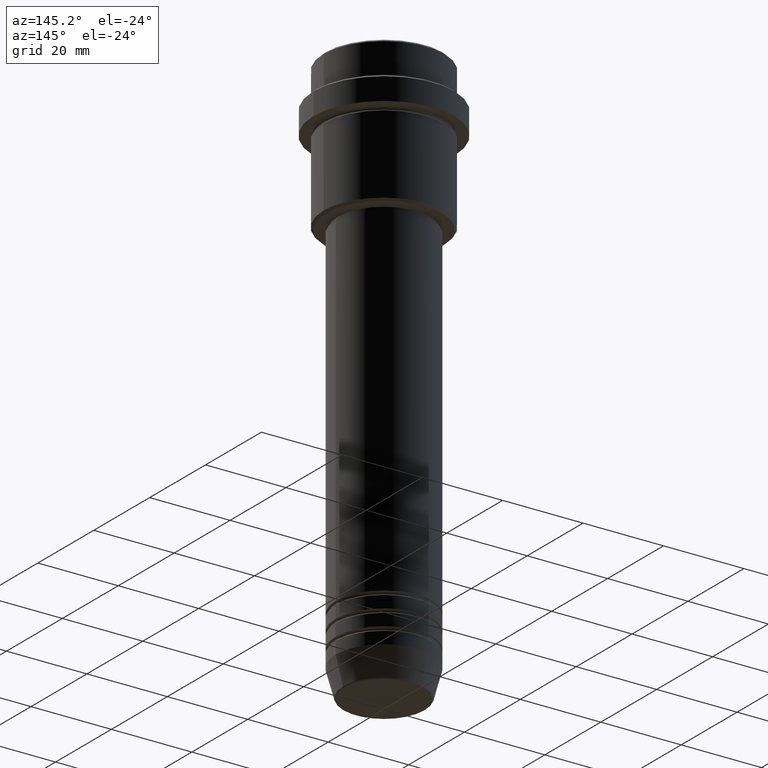
[diagram: clean part render]
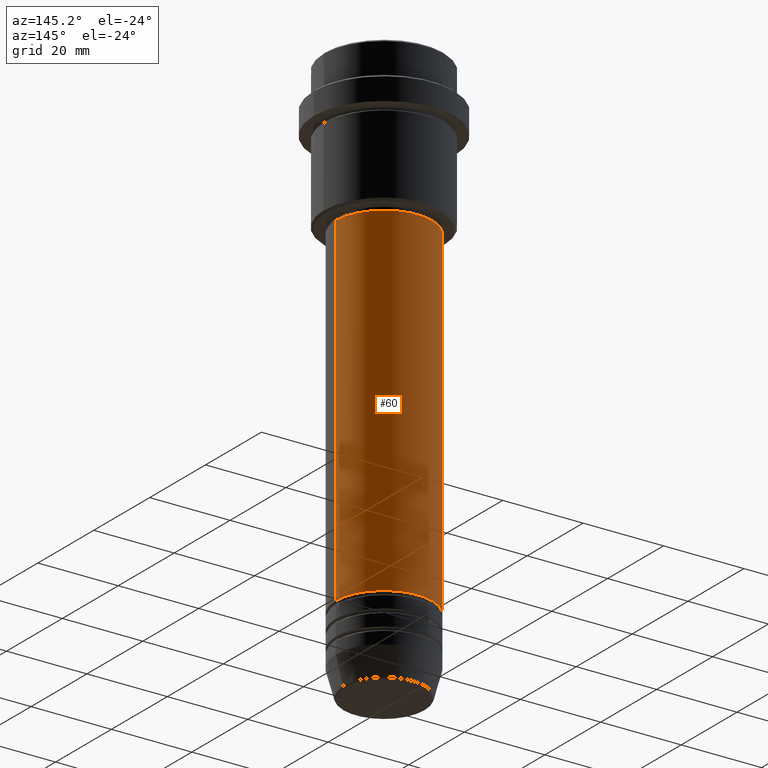
[diagram: same view with one face highlighted and labeled with its STEP entity id]
A machine part, auxiliary view. The second image highlights one B-rep face of the part: STEP entity #60.
In plain terms, the highlighted cylindrical surface (partial cylindrical patch) has radius 12 mm, axis along (-0, -0, 1).
Its self-contained STEP definition (entity closure, byte-faithful):
#60 = ADVANCED_FACE ( 'NONE', ( #1306 ), #762, .T. ) ;
#92 = CARTESIAN_POINT ( 'NONE',  ( -12.00000000000000000, 1.469576158976823947E-15, -121.9999999999998721 ) ) ;
#100 = VERTEX_POINT ( 'NONE', #92 ) ;
#108 = VECTOR ( 'NONE', #847, 1000.000000000000000 ) ;
#131 = AXIS2_PLACEMENT_3D ( 'NONE', #1263, #277, #504 ) ;
#234 = EDGE_LOOP ( 'NONE', ( #1203, #439, #1209, #1039 ) ) ;
#277 = DIRECTION ( 'NONE',  ( -0.000000000000000000, -0.000000000000000000, 1.000000000000000000 ) ) ;
#335 = DIRECTION ( 'NONE',  ( 1.000000000000000000, 0.000000000000000000, 0.000000000000000000 ) ) ;
#389 = VERTEX_POINT ( 'NONE', #747 ) ;
#428 = CARTESIAN_POINT ( 'NONE',  ( 0.000000000000000000, 0.000000000000000000, -36.99999999999999289 ) ) ;
#439 = ORIENTED_EDGE ( 'NONE', *, *, #949, .T. ) ;
#500 = EDGE_CURVE ( 'NONE', #900, #100, #681, .T. ) ;
#504 = DIRECTION ( 'NONE',  ( 1.000000000000000000, 0.000000000000000000, 0.000000000000000000 ) ) ;
#542 = CARTESIAN_POINT ( 'NONE',  ( 0.000000000000000000, 0.000000000000000000, 0.000000000000000000 ) ) ;
#566 = DIRECTION ( 'NONE',  ( -0.000000000000000000, -0.000000000000000000, 1.000000000000000000 ) ) ;
#681 = CIRCLE ( 'NONE', #131, 12.00000000000000000 ) ;
#708 = EDGE_CURVE ( 'NONE', #900, #389, #902, .T. ) ;
#747 = CARTESIAN_POINT ( 'NONE',  ( 11.99999999999999822, 0.000000000000000000, -36.99999999999999289 ) ) ;
#762 = CYLINDRICAL_SURFACE ( 'NONE', #1383, 12.00000000000000000 ) ;
#847 = DIRECTION ( 'NONE',  ( -0.000000000000000000, -0.000000000000000000, 1.000000000000000000 ) ) ;
#883 = DIRECTION ( 'NONE',  ( 1.000000000000000000, 0.000000000000000000, 0.000000000000000000 ) ) ;
#884 = CARTESIAN_POINT ( 'NONE',  ( -11.99999999999999822, 1.469576158976823750E-15, -36.99999999999999289 ) ) ;
#900 = VERTEX_POINT ( 'NONE', #914 ) ;
#902 = LINE ( 'NONE', #1132, #990 ) ;
#914 = CARTESIAN_POINT ( 'NONE',  ( 12.00000000000000000, 0.000000000000000000, -121.9999999999998721 ) ) ;
#949 = EDGE_CURVE ( 'NONE', #100, #1067, #1150, .T. ) ;
#986 = DIRECTION ( 'NONE',  ( -0.000000000000000000, -0.000000000000000000, 1.000000000000000000 ) ) ;
#990 = VECTOR ( 'NONE', #566, 1000.000000000000000 ) ;
#1006 = CIRCLE ( 'NONE', #1167, 11.99999999999999822 ) ;
#1027 = EDGE_CURVE ( 'NONE', #389, #1067, #1006, .T. ) ;
#1039 = ORIENTED_EDGE ( 'NONE', *, *, #708, .F. ) ;
#1067 = VERTEX_POINT ( 'NONE', #884 ) ;
#1132 = CARTESIAN_POINT ( 'NONE',  ( 12.00000000000000000, 0.000000000000000000, 0.000000000000000000 ) ) ;
#1137 = CARTESIAN_POINT ( 'NONE',  ( -12.00000000000000000, 1.469576158976823947E-15, 0.000000000000000000 ) ) ;
#1150 = LINE ( 'NONE', #1137, #108 ) ;
#1167 = AXIS2_PLACEMENT_3D ( 'NONE', #428, #1319, #335 ) ;
#1203 = ORIENTED_EDGE ( 'NONE', *, *, #500, .T. ) ;
#1209 = ORIENTED_EDGE ( 'NONE', *, *, #1027, .F. ) ;
#1263 = CARTESIAN_POINT ( 'NONE',  ( 0.000000000000000000, 0.000000000000000000, -121.9999999999998721 ) ) ;
#1306 = FACE_OUTER_BOUND ( 'NONE', #234, .T. ) ;
#1319 = DIRECTION ( 'NONE',  ( -0.000000000000000000, -0.000000000000000000, 1.000000000000000000 ) ) ;
#1383 = AXIS2_PLACEMENT_3D ( 'NONE', #542, #986, #883 ) ;